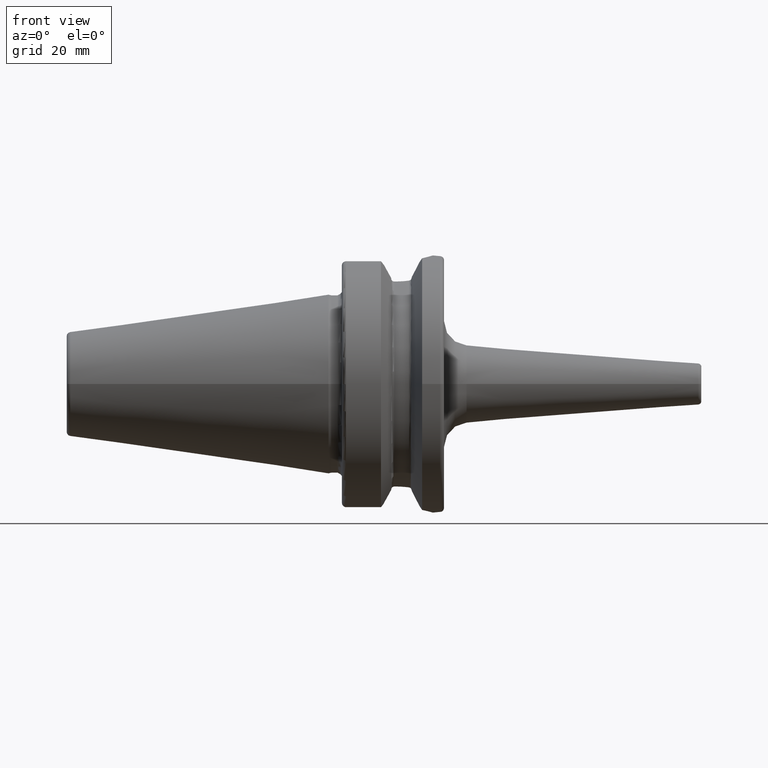
[diagram: clean part render]
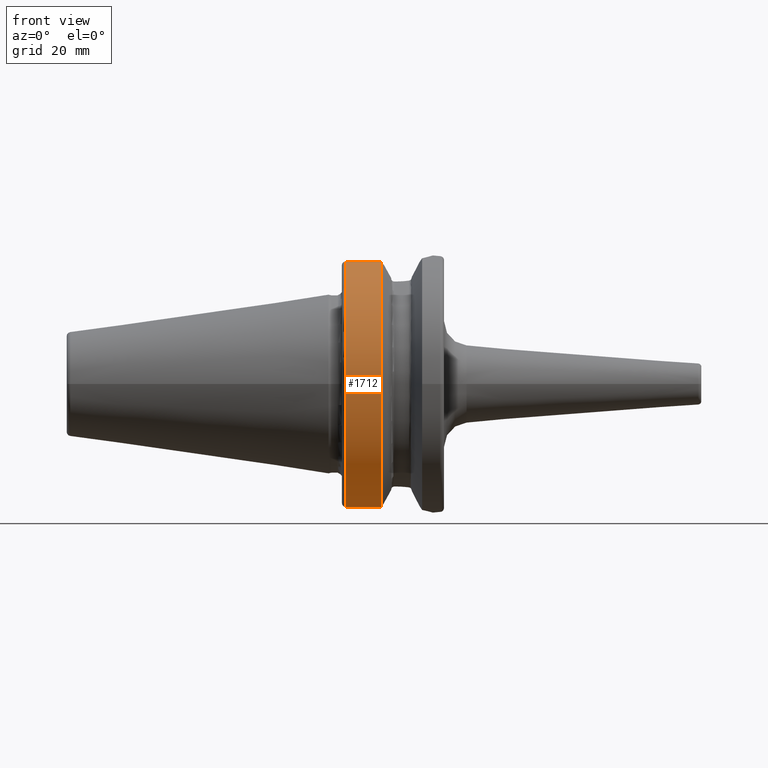
[diagram: same view with one face highlighted and labeled with its STEP entity id]
A machine part, front view. The second image highlights one B-rep face of the part: STEP entity #1712.
In plain terms, the highlighted cylindrical surface (partial cylindrical patch) has radius 31.4875 mm, axis along (1, 0, 0).
Its self-contained STEP definition (entity closure, byte-faithful):
#210=CARTESIAN_POINT('',(1.157272253103E1,0.E0,0.E0));
#211=DIRECTION('',(1.E0,0.E0,0.E0));
#212=DIRECTION('',(0.E0,-2.983189831898E-1,9.544662300305E-1));
#213=AXIS2_PLACEMENT_3D('',#210,#211,#212);
#215=DIRECTION('',(9.999999999998E-1,-3.572441507671E-7,4.802508939409E-7));
#216=VECTOR('',#215,8.572722533299E0);
#217=CARTESIAN_POINT('',(2.999999997734E0,-9.052776400559E0,-3.015808496187E1));
#218=LINE('',#217,#216);
#219=CARTESIAN_POINT('',(3.E0,0.E0,0.E0));
#220=DIRECTION('',(-1.E0,0.E0,0.E0));
#221=DIRECTION('',(0.E0,-2.875039130802E-1,-9.577794631143E-1));
#222=AXIS2_PLACEMENT_3D('',#219,#220,#221);
#224=DIRECTION('',(-9.999999999911E-1,2.496639374553E-6,3.395432034657E-6));
#225=VECTOR('',#224,8.572722551500E0);
#226=CARTESIAN_POINT('',(1.157272253103E1,-9.393318983190E0,3.005375541808E1));
#227=LINE('',#226,#225);
#606=CARTESIAN_POINT('',(2.999999997734E0,-9.052776400559E0,-3.015808496187E1));
#1322=CARTESIAN_POINT('',(1.157272253103E1,-9.393318983190E0,3.005375541808E1));
#1323=CARTESIAN_POINT('',(1.157272253103E1,-9.052779463114E0,
-3.015808084481E1));
#1324=VERTEX_POINT('',#1322);
#1325=VERTEX_POINT('',#1323);
#1338=CARTESIAN_POINT('',(3.E0,-9.393347656107E0,3.005374645633E1));
#1339=VERTEX_POINT('',#1338);
#1360=VERTEX_POINT('',#606);
#1698=CARTESIAN_POINT('',(-7.002E1,0.E0,0.E0));
#1699=DIRECTION('',(1.E0,0.E0,0.E0));
#1700=DIRECTION('',(0.E0,-1.E0,0.E0));
#1701=AXIS2_PLACEMENT_3D('',#1698,#1699,#1700);
#1702=CYLINDRICAL_SURFACE('',#1701,3.14875E1);
#1703=ORIENTED_EDGE('',*,*,#1689,.T.);
#1705=ORIENTED_EDGE('',*,*,#1704,.F.);
#1707=ORIENTED_EDGE('',*,*,#1706,.T.);
#1709=ORIENTED_EDGE('',*,*,#1708,.F.);
#1710=EDGE_LOOP('',(#1703,#1705,#1707,#1709));
#1711=FACE_OUTER_BOUND('',#1710,.F.);
#1712=ADVANCED_FACE('',(#1711),#1702,.T.);
#214=CIRCLE('',#213,3.14875E1);
#223=CIRCLE('',#222,3.14875E1);
#1689=EDGE_CURVE('',#1324,#1325,#214,.T.);
#1704=EDGE_CURVE('',#1360,#1325,#218,.T.);
#1706=EDGE_CURVE('',#1360,#1339,#223,.T.);
#1708=EDGE_CURVE('',#1324,#1339,#227,.T.);